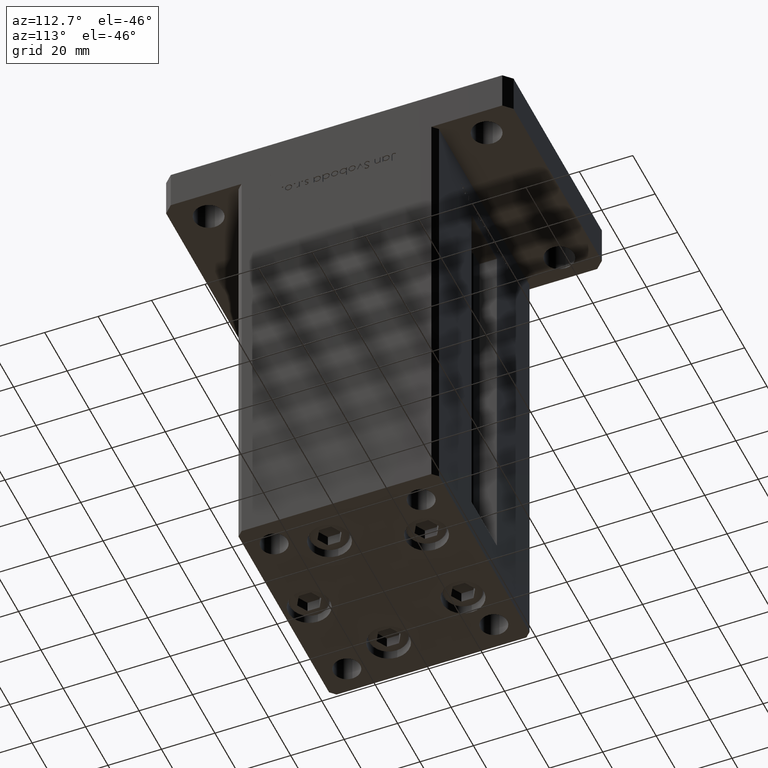
[diagram: clean part render]
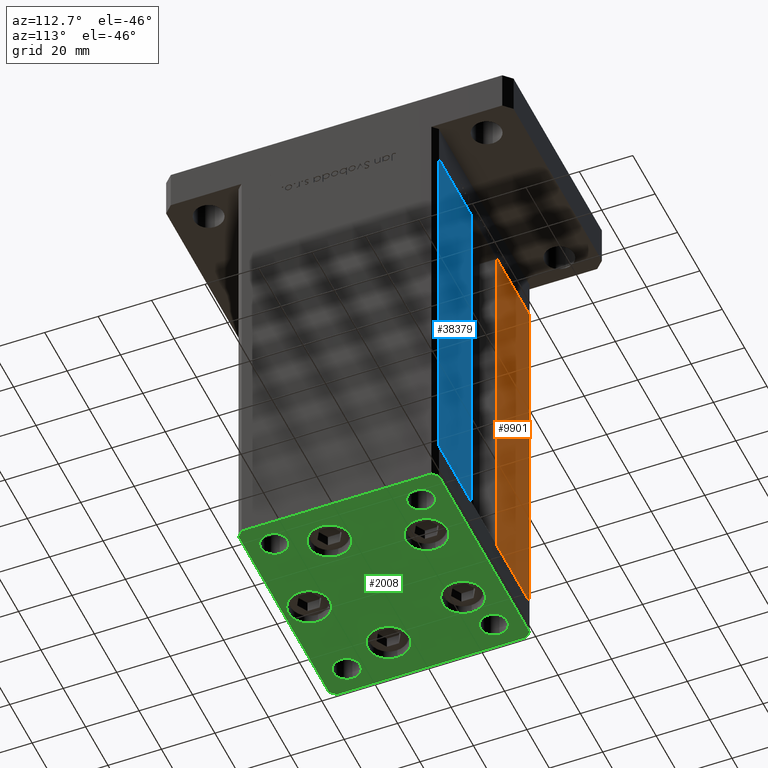
[diagram: same view with three faces highlighted in distinct colors, each labeled with its STEP entity id]
A machine part, auxiliary view with three faces highlighted in distinct colors.
Their STEP definitions:

[orange] entity #9901 — the highlighted planar face has unit normal (-0, -1, 0).
#410 = LINE ( 'NONE', #25635, #34062 ) ;
#842 = EDGE_CURVE ( 'NONE', #18680, #17010, #410, .T. ) ;
#1664 = LINE ( 'NONE', #14129, #16790 ) ;
#2443 = CARTESIAN_POINT ( 'NONE',  ( -11.25000000000000000, 37.50000000000000000, 0.000000000000000000 ) ) ;
#2766 = FACE_OUTER_BOUND ( 'NONE', #23855, .T. ) ;
#2972 = VECTOR ( 'NONE', #22220, 1000.000000000000000 ) ;
#9427 = VECTOR ( 'NONE', #38613, 1000.000000000000000 ) ;
#9712 = ORIENTED_EDGE ( 'NONE', *, *, #842, .F. ) ;
#9901 = ADVANCED_FACE ( 'NONE', ( #2766 ), #31762, .F. ) ;
#13423 = DIRECTION ( 'NONE',  ( -0.000000000000000000, -0.000000000000000000, 1.000000000000000000 ) ) ;
#14129 = CARTESIAN_POINT ( 'NONE',  ( -11.25000000000000000, 37.50000000000000000, 142.5000000000000000 ) ) ;
#16790 = VECTOR ( 'NONE', #26881, 1000.000000000000000 ) ;
#17010 = VERTEX_POINT ( 'NONE', #43729 ) ;
#17072 = VERTEX_POINT ( 'NONE', #30987 ) ;
#18680 = VERTEX_POINT ( 'NONE', #2443 ) ;
#22220 = DIRECTION ( 'NONE',  ( -1.000000000000000000, 2.372271420139223331E-16, 0.000000000000000000 ) ) ;
#23855 = EDGE_LOOP ( 'NONE', ( #46797, #9712, #44934, #43925 ) ) ;
#25635 = CARTESIAN_POINT ( 'NONE',  ( -11.25000000000000000, 37.50000000000000000, 0.000000000000000000 ) ) ;
#26823 = LINE ( 'NONE', #43348, #2972 ) ;
#26881 = DIRECTION ( 'NONE',  ( 1.000000000000000000, 0.000000000000000000, 0.000000000000000000 ) ) ;
#27694 = CARTESIAN_POINT ( 'NONE',  ( -40.50000000000000000, 37.50000000000000711, 0.000000000000000000 ) ) ;
#27711 = CARTESIAN_POINT ( 'NONE',  ( -11.25000000000000000, 37.50000000000000000, 142.5000000000000000 ) ) ;
#29955 = CARTESIAN_POINT ( 'NONE',  ( -40.50000000000000000, 37.50000000000000711, 142.5000000000000000 ) ) ;
#30987 = CARTESIAN_POINT ( 'NONE',  ( -40.50000000000000000, 37.50000000000000711, 142.5000000000000000 ) ) ;
#31762 = PLANE ( 'NONE',  #34083 ) ;
#32020 = DIRECTION ( 'NONE',  ( -2.372271420139223331E-16, -1.000000000000000000, 0.000000000000000000 ) ) ;
#33767 = EDGE_CURVE ( 'NONE', #17072, #37512, #34534, .T. ) ;
#34062 = VECTOR ( 'NONE', #13423, 1000.000000000000000 ) ;
#34083 = AXIS2_PLACEMENT_3D ( 'NONE', #27711, #32020, #44238 ) ;
#34534 = LINE ( 'NONE', #29955, #9427 ) ;
#37512 = VERTEX_POINT ( 'NONE', #27694 ) ;
#38613 = DIRECTION ( 'NONE',  ( -0.000000000000000000, -0.000000000000000000, -1.000000000000000000 ) ) ;
#43348 = CARTESIAN_POINT ( 'NONE',  ( -11.25000000000000000, 37.50000000000000000, 0.000000000000000000 ) ) ;
#43729 = CARTESIAN_POINT ( 'NONE',  ( -11.25000000000000000, 37.50000000000000000, 142.5000000000000000 ) ) ;
#43925 = ORIENTED_EDGE ( 'NONE', *, *, #33767, .F. ) ;
#44238 = DIRECTION ( 'NONE',  ( 1.000000000000000000, -2.372271420139223331E-16, 0.000000000000000000 ) ) ;
#44934 = ORIENTED_EDGE ( 'NONE', *, *, #47024, .T. ) ;
#46072 = EDGE_CURVE ( 'NONE', #17072, #17010, #1664, .T. ) ;
#46797 = ORIENTED_EDGE ( 'NONE', *, *, #46072, .T. ) ;
#47024 = EDGE_CURVE ( 'NONE', #18680, #37512, #26823, .T. ) ;

[blue] entity #38379 — the highlighted planar face has unit normal (-0, -1, 0).
#3697 = CARTESIAN_POINT ( 'NONE',  ( 11.25000000000000000, 37.50000000000000000, 0.000000000000000000 ) ) ;
#3717 = ORIENTED_EDGE ( 'NONE', *, *, #5987, .T. ) ;
#4168 = ORIENTED_EDGE ( 'NONE', *, *, #22246, .T. ) ;
#4243 = DIRECTION ( 'NONE',  ( -0.000000000000000000, -0.000000000000000000, 1.000000000000000000 ) ) ;
#4594 = EDGE_CURVE ( 'NONE', #5568, #6518, #37721, .T. ) ;
#5568 = VERTEX_POINT ( 'NONE', #35526 ) ;
#5987 = EDGE_CURVE ( 'NONE', #13250, #5568, #28410, .T. ) ;
#6518 = VERTEX_POINT ( 'NONE', #10949 ) ;
#7501 = VECTOR ( 'NONE', #52965, 1000.000000000000000 ) ;
#7800 = DIRECTION ( 'NONE',  ( -0.000000000000000000, -0.000000000000000000, -1.000000000000000000 ) ) ;
#10949 = CARTESIAN_POINT ( 'NONE',  ( 11.25000000000000000, 37.50000000000000000, 0.000000000000000000 ) ) ;
#12790 = ORIENTED_EDGE ( 'NONE', *, *, #31893, .T. ) ;
#13250 = VERTEX_POINT ( 'NONE', #33091 ) ;
#14179 = ORIENTED_EDGE ( 'NONE', *, *, #4594, .T. ) ;
#18465 = CARTESIAN_POINT ( 'NONE',  ( -11.25000000000000000, 37.50000000000000000, 142.5000000000000000 ) ) ;
#19623 = LINE ( 'NONE', #28287, #7501 ) ;
#20987 = VECTOR ( 'NONE', #29066, 1000.000000000000000 ) ;
#21471 = CARTESIAN_POINT ( 'NONE',  ( -11.25000000000000000, 37.50000000000000000, 0.000000000000000000 ) ) ;
#22246 = EDGE_CURVE ( 'NONE', #44248, #13250, #19623, .T. ) ;
#23875 = FACE_OUTER_BOUND ( 'NONE', #51546, .T. ) ;
#24385 = AXIS2_PLACEMENT_3D ( 'NONE', #18465, #30929, #47472 ) ;
#28287 = CARTESIAN_POINT ( 'NONE',  ( -11.25000000000000000, 37.50000000000000000, 142.5000000000000000 ) ) ;
#28410 = LINE ( 'NONE', #44946, #30536 ) ;
#29066 = DIRECTION ( 'NONE',  ( -1.000000000000000000, 2.372271420139223331E-16, 0.000000000000000000 ) ) ;
#30536 = VECTOR ( 'NONE', #7800, 1000.000000000000000 ) ;
#30929 = DIRECTION ( 'NONE',  ( -2.372271420139223331E-16, -1.000000000000000000, 0.000000000000000000 ) ) ;
#31373 = CARTESIAN_POINT ( 'NONE',  ( 11.24999999999999289, 37.50000000000000000, 142.5000000000000000 ) ) ;
#31893 = EDGE_CURVE ( 'NONE', #6518, #44248, #41380, .T. ) ;
#33091 = CARTESIAN_POINT ( 'NONE',  ( 40.50000000000000000, 37.50000000000000711, 142.5000000000000000 ) ) ;
#35353 = VECTOR ( 'NONE', #4243, 1000.000000000000000 ) ;
#35526 = CARTESIAN_POINT ( 'NONE',  ( 40.50000000000000000, 37.50000000000000711, 0.000000000000000000 ) ) ;
#37721 = LINE ( 'NONE', #21471, #20987 ) ;
#38379 = ADVANCED_FACE ( 'NONE', ( #23875 ), #40391, .F. ) ;
#40391 = PLANE ( 'NONE',  #24385 ) ;
#41380 = LINE ( 'NONE', #3697, #35353 ) ;
#44248 = VERTEX_POINT ( 'NONE', #31373 ) ;
#44946 = CARTESIAN_POINT ( 'NONE',  ( 40.50000000000000000, 37.50000000000000711, 142.5000000000000000 ) ) ;
#47472 = DIRECTION ( 'NONE',  ( 1.000000000000000000, -2.372271420139223331E-16, 0.000000000000000000 ) ) ;
#51546 = EDGE_LOOP ( 'NONE', ( #14179, #12790, #4168, #3717 ) ) ;
#52965 = DIRECTION ( 'NONE',  ( 1.000000000000000000, 0.000000000000000000, 0.000000000000000000 ) ) ;

[green] entity #2008 — the highlighted planar face has unit normal (0, 0, -1).
#276 = DIRECTION ( 'NONE',  ( 1.000000000000000000, 1.713307136767217096E-16, 0.000000000000000000 ) ) ;
#324 = DIRECTION ( 'NONE',  ( -0.000000000000000000, 0.000000000000000000, 1.000000000000000000 ) ) ;
#619 = VECTOR ( 'NONE', #276, 1000.000000000000000 ) ;
#784 = EDGE_LOOP ( 'NONE', ( #31768, #25919 ) ) ;
#1077 = CARTESIAN_POINT ( 'NONE',  ( 40.50000000000000000, -37.50000000000000711, 0.000000000000000000 ) ) ;
#1082 = LINE ( 'NONE', #37407, #619 ) ;
#1719 = DIRECTION ( 'NONE',  ( -0.7071067811865474617, 0.7071067811865474617, 0.000000000000000000 ) ) ;
#1800 = VERTEX_POINT ( 'NONE', #52975 ) ;
#2008 = ADVANCED_FACE ( 'NONE', ( #39636, #2496, #10355, #22835, #52107, #30961, #10892, #6023, #47767, #30689 ), #26904, .T. ) ;
#2329 = EDGE_CURVE ( 'NONE', #29661, #15577, #35422, .T. ) ;
#2393 = EDGE_CURVE ( 'NONE', #50377, #3188, #33891, .T. ) ;
#2496 = FACE_BOUND ( 'NONE', #24873, .T. ) ;
#2692 = DIRECTION ( 'NONE',  ( 1.000000000000000000, 0.000000000000000000, 0.000000000000000000 ) ) ;
#2722 = EDGE_LOOP ( 'NONE', ( #48251, #37238 ) ) ;
#3188 = VERTEX_POINT ( 'NONE', #52532 ) ;
#4277 = CARTESIAN_POINT ( 'NONE',  ( 16.32291334290542295, 22.75000000000000000, 0.000000000000000000 ) ) ;
#4678 = AXIS2_PLACEMENT_3D ( 'NONE', #37452, #324, #12809 ) ;
#5328 = CARTESIAN_POINT ( 'NONE',  ( 37.50000000000000000, -27.49999999999999645, 0.000000000000000000 ) ) ;
#5454 = CIRCLE ( 'NONE', #40930, 7.750000000000000000 ) ;
#5531 = AXIS2_PLACEMENT_3D ( 'NONE', #34979, #5994, #31450 ) ;
#5554 = DIRECTION ( 'NONE',  ( 1.000000000000000000, 0.000000000000000000, 0.000000000000000000 ) ) ;
#5749 = DIRECTION ( 'NONE',  ( 1.000000000000000000, 0.000000000000000000, 0.000000000000000000 ) ) ;
#5977 = EDGE_LOOP ( 'NONE', ( #22322, #24872 ) ) ;
#5994 = DIRECTION ( 'NONE',  ( 0.000000000000000000, -0.000000000000000000, -1.000000000000000000 ) ) ;
#6023 = FACE_BOUND ( 'NONE', #19202, .T. ) ;
#6149 = AXIS2_PLACEMENT_3D ( 'NONE', #36936, #16354, #23424 ) ;
#6835 = DIRECTION ( 'NONE',  ( 0.000000000000000000, -0.000000000000000000, -1.000000000000000000 ) ) ;
#7165 = EDGE_CURVE ( 'NONE', #32516, #1800, #5454, .T. ) ;
#7218 = DIRECTION ( 'NONE',  ( 0.000000000000000000, -0.000000000000000000, -1.000000000000000000 ) ) ;
#7716 = EDGE_CURVE ( 'NONE', #1800, #32516, #34862, .T. ) ;
#7760 = DIRECTION ( 'NONE',  ( 0.000000000000000000, -0.000000000000000000, -1.000000000000000000 ) ) ;
#7864 = DIRECTION ( 'NONE',  ( 0.000000000000000000, -0.000000000000000000, -1.000000000000000000 ) ) ;
#7955 = DIRECTION ( 'NONE',  ( 0.000000000000000000, -0.000000000000000000, -1.000000000000000000 ) ) ;
#7968 = ORIENTED_EDGE ( 'NONE', *, *, #19653, .T. ) ;
#8018 = DIRECTION ( 'NONE',  ( 1.000000000000000000, 0.000000000000000000, 0.000000000000000000 ) ) ;
#8055 = ORIENTED_EDGE ( 'NONE', *, *, #41423, .T. ) ;
#8309 = EDGE_CURVE ( 'NONE', #42662, #21926, #53111, .T. ) ;
#8510 = CARTESIAN_POINT ( 'NONE',  ( -40.50000000000000711, 37.49999999999997868, 0.000000000000000000 ) ) ;
#8667 = CARTESIAN_POINT ( 'NONE',  ( -32.50000000000000000, 27.50000000000000355, 0.000000000000000000 ) ) ;
#8703 = DIRECTION ( 'NONE',  ( 0.7071067811865463515, -0.7071067811865487940, 0.000000000000000000 ) ) ;
#8807 = EDGE_CURVE ( 'NONE', #34298, #32688, #47914, .T. ) ;
#10355 = FACE_BOUND ( 'NONE', #5977, .T. ) ;
#10383 = VERTEX_POINT ( 'NONE', #33231 ) ;
#10611 = CARTESIAN_POINT ( 'NONE',  ( 3.429011037612589276E-15, -28.00000000000000000, 0.000000000000000000 ) ) ;
#10792 = AXIS2_PLACEMENT_3D ( 'NONE', #44746, #7864, #32248 ) ;
#10892 = FACE_BOUND ( 'NONE', #13996, .T. ) ;
#11142 = CARTESIAN_POINT ( 'NONE',  ( -42.50000000000000000, -35.50000000000000711, 0.000000000000000000 ) ) ;
#11212 = DIRECTION ( 'NONE',  ( 0.7071067811865474617, 0.7071067811865474617, 0.000000000000000000 ) ) ;
#11254 = EDGE_LOOP ( 'NONE', ( #42128, #38459, #39999, #51202, #18609, #47397, #38052, #7968 ) ) ;
#12090 = CARTESIAN_POINT ( 'NONE',  ( 3.429011037612589276E-15, -28.00000000000000000, 0.000000000000000000 ) ) ;
#12264 = CARTESIAN_POINT ( 'NONE',  ( -27.50000000000000000, 27.50000000000000355, 0.000000000000000000 ) ) ;
#12809 = DIRECTION ( 'NONE',  ( 1.000000000000000000, 0.000000000000000000, 0.000000000000000000 ) ) ;
#13089 = CIRCLE ( 'NONE', #42489, 7.750000000000000000 ) ;
#13611 = CARTESIAN_POINT ( 'NONE',  ( -37.50000000000000711, 27.50000000000000355, 0.000000000000000000 ) ) ;
#13800 = VERTEX_POINT ( 'NONE', #31215 ) ;
#13996 = EDGE_LOOP ( 'NONE', ( #24242, #43849 ) ) ;
#14159 = DIRECTION ( 'NONE',  ( 1.000000000000000000, 0.000000000000000000, 0.000000000000000000 ) ) ;
#14169 = CIRCLE ( 'NONE', #5531, 7.750000000000000000 ) ;
#14175 = VERTEX_POINT ( 'NONE', #35946 ) ;
#14291 = EDGE_CURVE ( 'NONE', #38612, #30265, #49696, .T. ) ;
#14855 = EDGE_LOOP ( 'NONE', ( #14923, #16190 ) ) ;
#14923 = ORIENTED_EDGE ( 'NONE', *, *, #7716, .T. ) ;
#14959 = DIRECTION ( 'NONE',  ( -0.000000000000000000, 0.000000000000000000, 1.000000000000000000 ) ) ;
#15577 = VERTEX_POINT ( 'NONE', #8510 ) ;
#15811 = LINE ( 'NONE', #32873, #47724 ) ;
#16190 = ORIENTED_EDGE ( 'NONE', *, *, #7165, .T. ) ;
#16354 = DIRECTION ( 'NONE',  ( 0.000000000000000000, -0.000000000000000000, -1.000000000000000000 ) ) ;
#16528 = DIRECTION ( 'NONE',  ( 1.000000000000000000, 0.000000000000000000, 0.000000000000000000 ) ) ;
#16929 = VECTOR ( 'NONE', #51978, 1000.000000000000000 ) ;
#17079 = DIRECTION ( 'NONE',  ( -0.000000000000000000, 0.000000000000000000, 1.000000000000000000 ) ) ;
#17572 = DIRECTION ( 'NONE',  ( -0.7071067811865463515, -0.7071067811865487940, 0.000000000000000000 ) ) ;
#17589 = VERTEX_POINT ( 'NONE', #51187 ) ;
#18609 = ORIENTED_EDGE ( 'NONE', *, *, #43828, .T. ) ;
#18708 = CARTESIAN_POINT ( 'NONE',  ( -32.50000000000000000, -27.49999999999999645, 0.000000000000000000 ) ) ;
#18980 = DIRECTION ( 'NONE',  ( 1.000000000000000000, 0.000000000000000000, 0.000000000000000000 ) ) ;
#18983 = DIRECTION ( 'NONE',  ( 1.000000000000000000, 0.000000000000000000, 0.000000000000000000 ) ) ;
#19202 = EDGE_LOOP ( 'NONE', ( #35567, #38663 ) ) ;
#19512 = AXIS2_PLACEMENT_3D ( 'NONE', #31226, #6835, #47773 ) ;
#19522 = EDGE_CURVE ( 'NONE', #39992, #13800, #25255, .T. ) ;
#19653 = EDGE_CURVE ( 'NONE', #44903, #39992, #40896, .T. ) ;
#20570 = CARTESIAN_POINT ( 'NONE',  ( 42.50000000000000711, -35.50000000000000000, 0.000000000000000000 ) ) ;
#20588 = AXIS2_PLACEMENT_3D ( 'NONE', #47421, #26824, #43350 ) ;
#20874 = DIRECTION ( 'NONE',  ( 1.000000000000000000, 0.000000000000000000, 0.000000000000000000 ) ) ;
#21010 = EDGE_LOOP ( 'NONE', ( #38773, #36044 ) ) ;
#21094 = AXIS2_PLACEMENT_3D ( 'NONE', #37125, #30030, #16528 ) ;
#21424 = CARTESIAN_POINT ( 'NONE',  ( 27.50000000000000355, -27.49999999999999645, 0.000000000000000000 ) ) ;
#21500 = CARTESIAN_POINT ( 'NONE',  ( -37.50000000000000711, -27.49999999999999645, 0.000000000000000000 ) ) ;
#21510 = CARTESIAN_POINT ( 'NONE',  ( 32.50000000000000000, -27.49999999999999645, 0.000000000000000000 ) ) ;
#21522 = CARTESIAN_POINT ( 'NONE',  ( -7.749999999999996447, -28.00000000000000000, 0.000000000000000000 ) ) ;
#21911 = VECTOR ( 'NONE', #17572, 1000.000000000000000 ) ;
#21913 = CARTESIAN_POINT ( 'NONE',  ( -40.50000000000000711, 37.49999999999997868, 0.000000000000000000 ) ) ;
#21926 = VERTEX_POINT ( 'NONE', #27087 ) ;
#22322 = ORIENTED_EDGE ( 'NONE', *, *, #46793, .T. ) ;
#22835 = FACE_BOUND ( 'NONE', #2722, .T. ) ;
#23424 = DIRECTION ( 'NONE',  ( 1.000000000000000000, 0.000000000000000000, 0.000000000000000000 ) ) ;
#23513 = CARTESIAN_POINT ( 'NONE',  ( 34.14865316429776954, -9.333333333333328596, 0.000000000000000000 ) ) ;
#23566 = EDGE_CURVE ( 'NONE', #13800, #37712, #1082, .T. ) ;
#23745 = EDGE_LOOP ( 'NONE', ( #8055, #38392 ) ) ;
#23837 = DIRECTION ( 'NONE',  ( -1.172770800660376741E-15, 1.000000000000000000, 0.000000000000000000 ) ) ;
#24242 = ORIENTED_EDGE ( 'NONE', *, *, #51963, .T. ) ;
#24344 = CIRCLE ( 'NONE', #6149, 5.000000000000000888 ) ;
#24650 = CARTESIAN_POINT ( 'NONE',  ( -42.50000000000000711, 35.49999999999997158, 0.000000000000000000 ) ) ;
#24872 = ORIENTED_EDGE ( 'NONE', *, *, #8309, .T. ) ;
#24873 = EDGE_LOOP ( 'NONE', ( #41387, #50915 ) ) ;
#25255 = LINE ( 'NONE', #38514, #32494 ) ;
#25330 = AXIS2_PLACEMENT_3D ( 'NONE', #36017, #27643, #2692 ) ;
#25430 = DIRECTION ( 'NONE',  ( 1.000000000000000000, 0.000000000000000000, 0.000000000000000000 ) ) ;
#25782 = VERTEX_POINT ( 'NONE', #13611 ) ;
#25908 = EDGE_CURVE ( 'NONE', #38985, #25782, #44853, .T. ) ;
#25919 = ORIENTED_EDGE ( 'NONE', *, *, #26256, .F. ) ;
#26256 = EDGE_CURVE ( 'NONE', #3188, #50377, #43966, .T. ) ;
#26824 = DIRECTION ( 'NONE',  ( -0.000000000000000000, 0.000000000000000000, 1.000000000000000000 ) ) ;
#26904 = PLANE ( 'NONE',  #35099 ) ;
#27008 = VERTEX_POINT ( 'NONE', #21500 ) ;
#27087 = CARTESIAN_POINT ( 'NONE',  ( 18.64865316429776954, -9.333333333333330373, 0.000000000000000000 ) ) ;
#27164 = DIRECTION ( 'NONE',  ( 0.000000000000000000, -0.000000000000000000, -1.000000000000000000 ) ) ;
#27201 = LINE ( 'NONE', #39663, #52253 ) ;
#27245 = VERTEX_POINT ( 'NONE', #43964 ) ;
#27508 = CARTESIAN_POINT ( 'NONE',  ( -26.39865316429776954, -9.333333333333337478, 0.000000000000000000 ) ) ;
#27643 = DIRECTION ( 'NONE',  ( 0.000000000000000000, -0.000000000000000000, -1.000000000000000000 ) ) ;
#27826 = DIRECTION ( 'NONE',  ( 1.000000000000000000, 0.000000000000000000, 0.000000000000000000 ) ) ;
#28024 = AXIS2_PLACEMENT_3D ( 'NONE', #21510, #7955, #41015 ) ;
#28747 = CIRCLE ( 'NONE', #25330, 7.750000000000000000 ) ;
#28953 = DIRECTION ( 'NONE',  ( 0.000000000000000000, -0.000000000000000000, -1.000000000000000000 ) ) ;
#29661 = VERTEX_POINT ( 'NONE', #37615 ) ;
#30030 = DIRECTION ( 'NONE',  ( 0.000000000000000000, -0.000000000000000000, -1.000000000000000000 ) ) ;
#30265 = VERTEX_POINT ( 'NONE', #21522 ) ;
#30451 = CARTESIAN_POINT ( 'NONE',  ( 42.49999999999992895, 35.50000000000000000, 0.000000000000000000 ) ) ;
#30493 = AXIS2_PLACEMENT_3D ( 'NONE', #18708, #52313, #18980 ) ;
#30689 = FACE_BOUND ( 'NONE', #23745, .T. ) ;
#30961 = FACE_BOUND ( 'NONE', #784, .T. ) ;
#31215 = CARTESIAN_POINT ( 'NONE',  ( -40.49999999999999289, -37.50000000000002132, 0.000000000000000000 ) ) ;
#31226 = CARTESIAN_POINT ( 'NONE',  ( 16.32291334290542295, 22.75000000000000000, 0.000000000000000000 ) ) ;
#31349 = CARTESIAN_POINT ( 'NONE',  ( 32.50000000000000000, 27.49999999999999645, 0.000000000000000000 ) ) ;
#31450 = DIRECTION ( 'NONE',  ( 1.000000000000000000, 0.000000000000000000, 0.000000000000000000 ) ) ;
#31768 = ORIENTED_EDGE ( 'NONE', *, *, #2393, .F. ) ;
#32248 = DIRECTION ( 'NONE',  ( 1.000000000000000000, 0.000000000000000000, 0.000000000000000000 ) ) ;
#32494 = VECTOR ( 'NONE', #8703, 1000.000000000000000 ) ;
#32516 = VERTEX_POINT ( 'NONE', #45189 ) ;
#32688 = VERTEX_POINT ( 'NONE', #5328 ) ;
#32873 = CARTESIAN_POINT ( 'NONE',  ( 40.50000000000000000, -37.50000000000000711, 0.000000000000000000 ) ) ;
#33166 = AXIS2_PLACEMENT_3D ( 'NONE', #47973, #7760, #18983 ) ;
#33198 = DIRECTION ( 'NONE',  ( 1.000000000000000000, 0.000000000000000000, 0.000000000000000000 ) ) ;
#33231 = CARTESIAN_POINT ( 'NONE',  ( -27.50000000000000000, -27.49999999999999645, 0.000000000000000000 ) ) ;
#33728 = AXIS2_PLACEMENT_3D ( 'NONE', #4277, #28953, #25430 ) ;
#33891 = CIRCLE ( 'NONE', #46018, 4.999999999999997335 ) ;
#34298 = VERTEX_POINT ( 'NONE', #21424 ) ;
#34625 = EDGE_CURVE ( 'NONE', #14175, #34901, #36306, .T. ) ;
#34862 = CIRCLE ( 'NONE', #33166, 7.750000000000000000 ) ;
#34901 = VERTEX_POINT ( 'NONE', #42089 ) ;
#34979 = CARTESIAN_POINT ( 'NONE',  ( -16.32291334290543006, 22.74999999999999645, 0.000000000000000000 ) ) ;
#35015 = CARTESIAN_POINT ( 'NONE',  ( 0.000000000000000000, 0.000000000000000000, 0.000000000000000000 ) ) ;
#35099 = AXIS2_PLACEMENT_3D ( 'NONE', #35015, #14959, #14159 ) ;
#35168 = LINE ( 'NONE', #21913, #21911 ) ;
#35422 = LINE ( 'NONE', #40295, #16929 ) ;
#35567 = ORIENTED_EDGE ( 'NONE', *, *, #25908, .F. ) ;
#35931 = CIRCLE ( 'NONE', #19512, 7.750000000000003553 ) ;
#35946 = CARTESIAN_POINT ( 'NONE',  ( 24.07291334290542650, 22.75000000000000000, 0.000000000000000000 ) ) ;
#36017 = CARTESIAN_POINT ( 'NONE',  ( -16.32291334290543006, 22.74999999999999645, 0.000000000000000000 ) ) ;
#36044 = ORIENTED_EDGE ( 'NONE', *, *, #45083, .T. ) ;
#36306 = CIRCLE ( 'NONE', #33728, 7.750000000000003553 ) ;
#36823 = VECTOR ( 'NONE', #52600, 1000.000000000000000 ) ;
#36936 = CARTESIAN_POINT ( 'NONE',  ( -32.50000000000000000, -27.49999999999999645, 0.000000000000000000 ) ) ;
#37109 = EDGE_CURVE ( 'NONE', #37712, #17589, #15811, .T. ) ;
#37122 = EDGE_CURVE ( 'NONE', #27008, #10383, #24344, .T. ) ;
#37125 = CARTESIAN_POINT ( 'NONE',  ( 26.39865316429776954, -9.333333333333330373, 0.000000000000000000 ) ) ;
#37238 = ORIENTED_EDGE ( 'NONE', *, *, #14291, .T. ) ;
#37312 = EDGE_CURVE ( 'NONE', #30265, #38612, #13089, .T. ) ;
#37407 = CARTESIAN_POINT ( 'NONE',  ( -40.49999999999999289, -37.50000000000002132, 0.000000000000000000 ) ) ;
#37452 = CARTESIAN_POINT ( 'NONE',  ( -32.50000000000000000, 27.50000000000000355, 0.000000000000000000 ) ) ;
#37561 = CIRCLE ( 'NONE', #4678, 5.000000000000000888 ) ;
#37615 = CARTESIAN_POINT ( 'NONE',  ( 40.49999999999991473, 37.50000000000000711, 0.000000000000000000 ) ) ;
#37712 = VERTEX_POINT ( 'NONE', #1077 ) ;
#38052 = ORIENTED_EDGE ( 'NONE', *, *, #42495, .T. ) ;
#38392 = ORIENTED_EDGE ( 'NONE', *, *, #37122, .T. ) ;
#38459 = ORIENTED_EDGE ( 'NONE', *, *, #23566, .T. ) ;
#38514 = CARTESIAN_POINT ( 'NONE',  ( -42.50000000000000000, -35.50000000000000711, 0.000000000000000000 ) ) ;
#38612 = VERTEX_POINT ( 'NONE', #39993 ) ;
#38663 = ORIENTED_EDGE ( 'NONE', *, *, #45969, .F. ) ;
#38773 = ORIENTED_EDGE ( 'NONE', *, *, #41484, .T. ) ;
#38985 = VERTEX_POINT ( 'NONE', #12264 ) ;
#39441 = DIRECTION ( 'NONE',  ( 0.000000000000000000, -0.000000000000000000, -1.000000000000000000 ) ) ;
#39636 = FACE_BOUND ( 'NONE', #21010, .T. ) ;
#39663 = CARTESIAN_POINT ( 'NONE',  ( 42.49999999999992895, 35.50000000000000000, 0.000000000000000000 ) ) ;
#39992 = VERTEX_POINT ( 'NONE', #11142 ) ;
#39993 = CARTESIAN_POINT ( 'NONE',  ( 7.750000000000003553, -28.00000000000000000, 0.000000000000000000 ) ) ;
#39999 = ORIENTED_EDGE ( 'NONE', *, *, #37109, .T. ) ;
#40295 = CARTESIAN_POINT ( 'NONE',  ( 40.49999999999991473, 37.50000000000000711, 0.000000000000000000 ) ) ;
#40605 = CARTESIAN_POINT ( 'NONE',  ( 37.50000000000000000, 27.49999999999999645, 0.000000000000000000 ) ) ;
#40896 = LINE ( 'NONE', #24650, #36823 ) ;
#40930 = AXIS2_PLACEMENT_3D ( 'NONE', #27508, #39441, #5554 ) ;
#41015 = DIRECTION ( 'NONE',  ( 1.000000000000000000, 0.000000000000000000, 0.000000000000000000 ) ) ;
#41342 = CARTESIAN_POINT ( 'NONE',  ( 32.50000000000000000, -27.49999999999999645, 0.000000000000000000 ) ) ;
#41387 = ORIENTED_EDGE ( 'NONE', *, *, #48916, .T. ) ;
#41423 = EDGE_CURVE ( 'NONE', #10383, #27008, #52140, .T. ) ;
#41484 = EDGE_CURVE ( 'NONE', #27245, #48528, #28747, .T. ) ;
#42089 = CARTESIAN_POINT ( 'NONE',  ( 8.572913342905422951, 22.75000000000000000, 0.000000000000000000 ) ) ;
#42128 = ORIENTED_EDGE ( 'NONE', *, *, #19522, .T. ) ;
#42489 = AXIS2_PLACEMENT_3D ( 'NONE', #10611, #27164, #5749 ) ;
#42495 = EDGE_CURVE ( 'NONE', #15577, #44903, #35168, .T. ) ;
#42662 = VERTEX_POINT ( 'NONE', #23513 ) ;
#42758 = AXIS2_PLACEMENT_3D ( 'NONE', #12090, #7218, #8018 ) ;
#43350 = DIRECTION ( 'NONE',  ( 1.000000000000000000, 0.000000000000000000, 0.000000000000000000 ) ) ;
#43569 = DIRECTION ( 'NONE',  ( -0.000000000000000000, 0.000000000000000000, 1.000000000000000000 ) ) ;
#43736 = CIRCLE ( 'NONE', #49769, 4.999999999999997335 ) ;
#43828 = EDGE_CURVE ( 'NONE', #44795, #29661, #27201, .T. ) ;
#43849 = ORIENTED_EDGE ( 'NONE', *, *, #8807, .T. ) ;
#43964 = CARTESIAN_POINT ( 'NONE',  ( -24.07291334290543006, 22.74999999999999645, 0.000000000000000000 ) ) ;
#43966 = CIRCLE ( 'NONE', #20588, 4.999999999999997335 ) ;
#44746 = CARTESIAN_POINT ( 'NONE',  ( 26.39865316429776954, -9.333333333333330373, 0.000000000000000000 ) ) ;
#44795 = VERTEX_POINT ( 'NONE', #30451 ) ;
#44853 = CIRCLE ( 'NONE', #51790, 5.000000000000000888 ) ;
#44903 = VERTEX_POINT ( 'NONE', #49402 ) ;
#45083 = EDGE_CURVE ( 'NONE', #48528, #27245, #14169, .T. ) ;
#45189 = CARTESIAN_POINT ( 'NONE',  ( -18.64865316429776954, -9.333333333333335702, 0.000000000000000000 ) ) ;
#45424 = VECTOR ( 'NONE', #23837, 1000.000000000000000 ) ;
#45969 = EDGE_CURVE ( 'NONE', #25782, #38985, #37561, .T. ) ;
#46018 = AXIS2_PLACEMENT_3D ( 'NONE', #31349, #43569, #27826 ) ;
#46793 = EDGE_CURVE ( 'NONE', #21926, #42662, #49772, .T. ) ;
#47397 = ORIENTED_EDGE ( 'NONE', *, *, #2329, .T. ) ;
#47421 = CARTESIAN_POINT ( 'NONE',  ( 32.50000000000000000, 27.49999999999999645, 0.000000000000000000 ) ) ;
#47724 = VECTOR ( 'NONE', #11212, 1000.000000000000114 ) ;
#47767 = FACE_OUTER_BOUND ( 'NONE', #11254, .T. ) ;
#47773 = DIRECTION ( 'NONE',  ( 1.000000000000000000, 0.000000000000000000, 0.000000000000000000 ) ) ;
#47914 = CIRCLE ( 'NONE', #28024, 4.999999999999997335 ) ;
#47973 = CARTESIAN_POINT ( 'NONE',  ( -26.39865316429776954, -9.333333333333337478, 0.000000000000000000 ) ) ;
#48251 = ORIENTED_EDGE ( 'NONE', *, *, #37312, .T. ) ;
#48528 = VERTEX_POINT ( 'NONE', #51368 ) ;
#48916 = EDGE_CURVE ( 'NONE', #34901, #14175, #35931, .T. ) ;
#49402 = CARTESIAN_POINT ( 'NONE',  ( -42.50000000000000711, 35.49999999999997158, 0.000000000000000000 ) ) ;
#49696 = CIRCLE ( 'NONE', #42758, 7.750000000000000000 ) ;
#49769 = AXIS2_PLACEMENT_3D ( 'NONE', #41342, #50027, #33198 ) ;
#49772 = CIRCLE ( 'NONE', #10792, 7.750000000000000000 ) ;
#50027 = DIRECTION ( 'NONE',  ( 0.000000000000000000, -0.000000000000000000, -1.000000000000000000 ) ) ;
#50377 = VERTEX_POINT ( 'NONE', #40605 ) ;
#50915 = ORIENTED_EDGE ( 'NONE', *, *, #34625, .T. ) ;
#51187 = CARTESIAN_POINT ( 'NONE',  ( 42.50000000000000711, -35.50000000000000000, 0.000000000000000000 ) ) ;
#51202 = ORIENTED_EDGE ( 'NONE', *, *, #51614, .T. ) ;
#51368 = CARTESIAN_POINT ( 'NONE',  ( -8.572913342905431833, 22.74999999999999645, 0.000000000000000000 ) ) ;
#51614 = EDGE_CURVE ( 'NONE', #17589, #44795, #52845, .T. ) ;
#51790 = AXIS2_PLACEMENT_3D ( 'NONE', #8667, #17079, #20874 ) ;
#51963 = EDGE_CURVE ( 'NONE', #32688, #34298, #43736, .T. ) ;
#51978 = DIRECTION ( 'NONE',  ( -1.000000000000000000, -3.426614273534436165E-16, 0.000000000000000000 ) ) ;
#52107 = FACE_BOUND ( 'NONE', #14855, .T. ) ;
#52140 = CIRCLE ( 'NONE', #30493, 5.000000000000000888 ) ;
#52253 = VECTOR ( 'NONE', #1719, 1000.000000000000114 ) ;
#52313 = DIRECTION ( 'NONE',  ( 0.000000000000000000, -0.000000000000000000, -1.000000000000000000 ) ) ;
#52532 = CARTESIAN_POINT ( 'NONE',  ( 27.50000000000000355, 27.49999999999999645, 0.000000000000000000 ) ) ;
#52600 = DIRECTION ( 'NONE',  ( 9.773090005503140331E-17, -1.000000000000000000, 0.000000000000000000 ) ) ;
#52845 = LINE ( 'NONE', #20570, #45424 ) ;
#52975 = CARTESIAN_POINT ( 'NONE',  ( -34.14865316429776954, -9.333333333333337478, 0.000000000000000000 ) ) ;
#53111 = CIRCLE ( 'NONE', #21094, 7.750000000000000000 ) ;